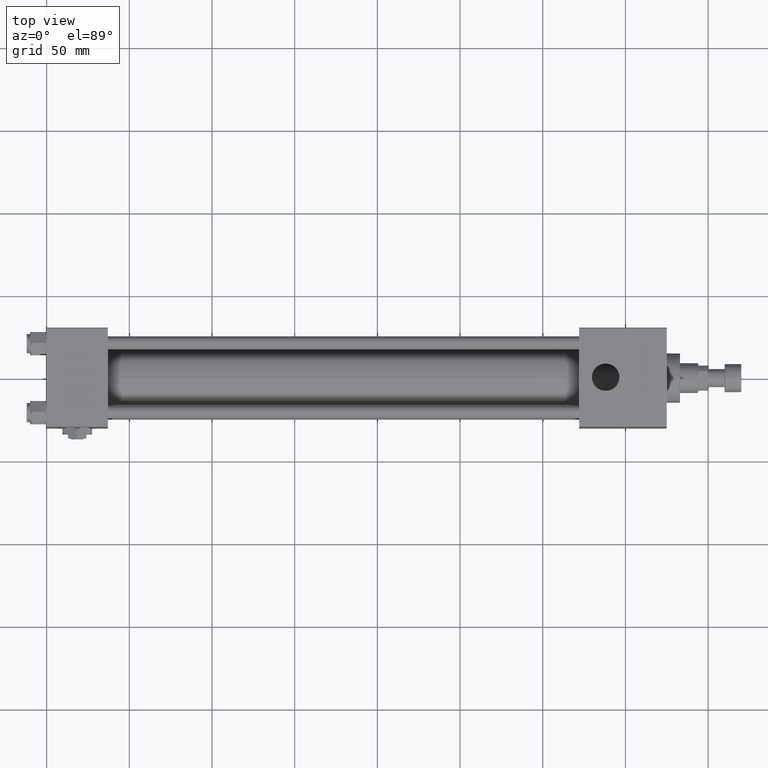
[diagram: clean part render]
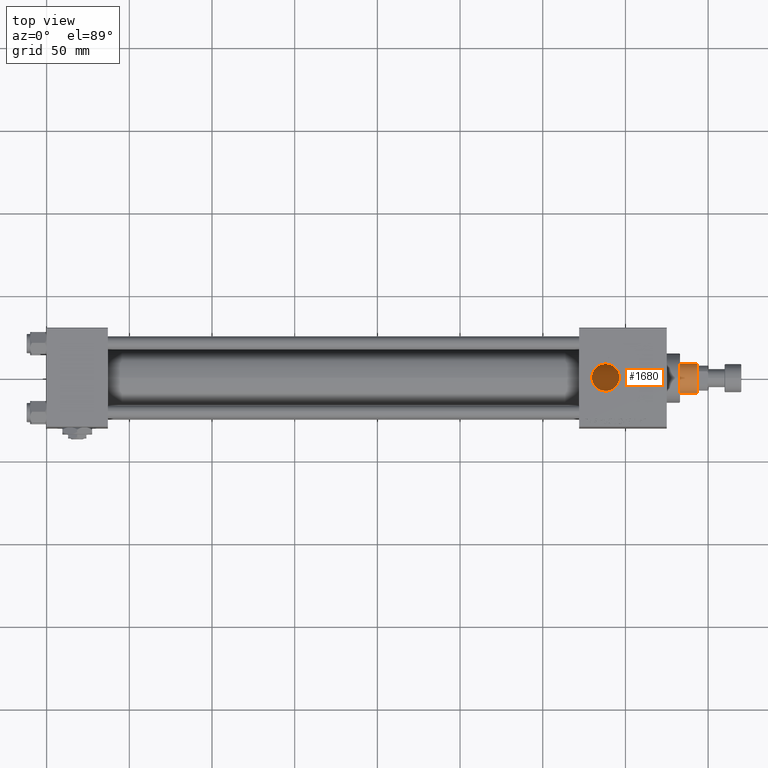
[diagram: same view with one face highlighted and labeled with its STEP entity id]
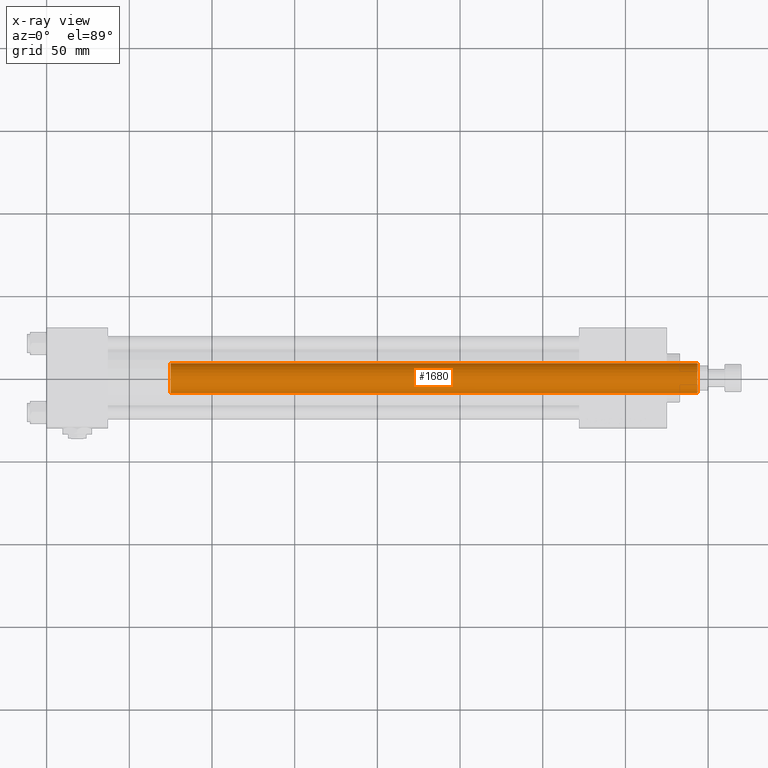
[diagram: x-ray of the same camera — body ghosted, the highlighted face saturated]
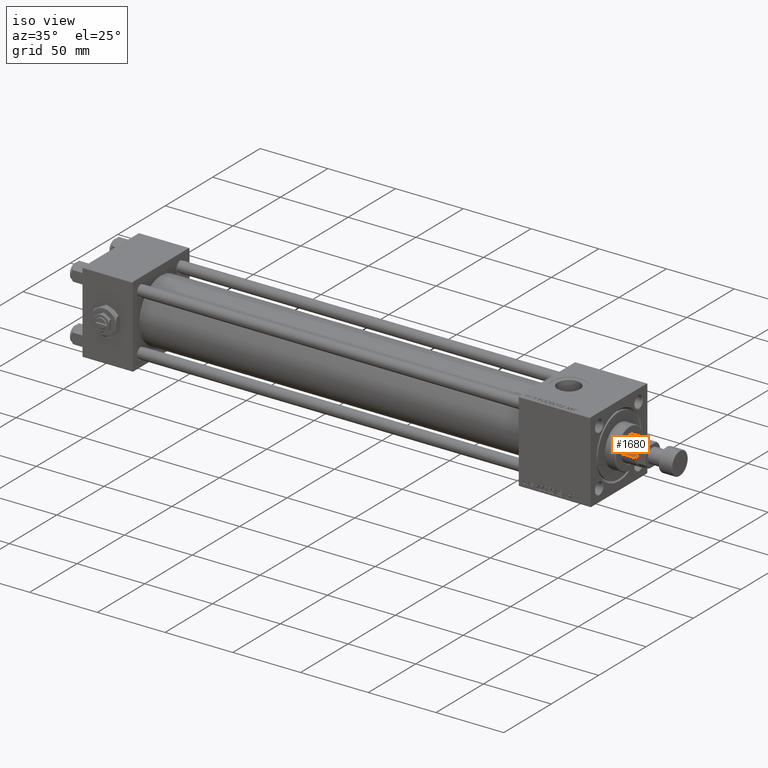
[diagram: same view with one face highlighted and labeled with its STEP entity id]
A machine part, top view. The second image highlights one B-rep face of the part: STEP entity #1680.
The next image is the same camera in x-ray: the body ghosted, the highlighted face saturated — about 0% of this face is hidden behind the body in this view.
A second angle (iso view) of the same face is appended — the face is thin or edge-on in the first view.
In plain terms, the highlighted cylindrical surface (edge-blend (fillet) strip) has radius 9 mm, axis along (-1, 0, 0).
Its self-contained STEP definition (entity closure, byte-faithful):
#150 = DIRECTION ( 'NONE',  ( -0.000000000000000000, -0.000000000000000000, -1.000000000000000000 ) ) ;
#1310 = DIRECTION ( 'NONE',  ( 1.000000000000000000, 0.000000000000000000, 0.000000000000000000 ) ) ;
#1561 = CARTESIAN_POINT ( 'NONE',  ( 0.000000000000000000, 0.000000000000000000, 38.00000000000000000 ) ) ;
#1680 = ADVANCED_FACE ( 'NONE', ( #36069 ), #16104, .T. ) ;
#2553 = EDGE_CURVE ( 'NONE', #14468, #42330, #45194, .T. ) ;
#4073 = CARTESIAN_POINT ( 'NONE',  ( -9.000000000000000000, 0.000000000000000000, 38.00000000000000000 ) ) ;
#4207 = CIRCLE ( 'NONE', #22891, 9.000000000000000000 ) ;
#5392 = AXIS2_PLACEMENT_3D ( 'NONE', #35949, #8245, #15721 ) ;
#7203 = ORIENTED_EDGE ( 'NONE', *, *, #2553, .F. ) ;
#7234 = EDGE_LOOP ( 'NONE', ( #7203, #37080, #44482, #48748 ) ) ;
#8245 = DIRECTION ( 'NONE',  ( 0.000000000000000000, 0.000000000000000000, -1.000000000000000000 ) ) ;
#10796 = DIRECTION ( 'NONE',  ( -0.000000000000000000, -0.000000000000000000, -1.000000000000000000 ) ) ;
#11142 = VECTOR ( 'NONE', #10796, 1000.000000000000000 ) ;
#11826 = DIRECTION ( 'NONE',  ( -1.000000000000000000, 0.000000000000000000, 0.000000000000000000 ) ) ;
#13254 = VECTOR ( 'NONE', #40691, 1000.000000000000000 ) ;
#13400 = VERTEX_POINT ( 'NONE', #4073 ) ;
#14468 = VERTEX_POINT ( 'NONE', #46194 ) ;
#15721 = DIRECTION ( 'NONE',  ( 1.000000000000000000, 0.000000000000000000, 0.000000000000000000 ) ) ;
#16104 = CYLINDRICAL_SURFACE ( 'NONE', #36706, 9.000000000000000000 ) ;
#18884 = CARTESIAN_POINT ( 'NONE',  ( 9.000000000000000000, 1.102182119232617714E-15, 38.00000000000000000 ) ) ;
#19921 = EDGE_CURVE ( 'NONE', #13400, #42330, #4207, .T. ) ;
#22891 = AXIS2_PLACEMENT_3D ( 'NONE', #1561, #34555, #1310 ) ;
#23902 = CARTESIAN_POINT ( 'NONE',  ( -9.000000000000000000, 0.000000000000000000, 357.0000000000000000 ) ) ;
#26614 = CIRCLE ( 'NONE', #5392, 9.000000000000000000 ) ;
#27789 = CARTESIAN_POINT ( 'NONE',  ( -9.000000000000000000, 0.000000000000000000, 356.5000000000000568 ) ) ;
#29313 = EDGE_CURVE ( 'NONE', #14468, #42991, #26614, .T. ) ;
#32077 = CARTESIAN_POINT ( 'NONE',  ( 0.000000000000000000, 0.000000000000000000, 357.0000000000000000 ) ) ;
#32173 = LINE ( 'NONE', #23902, #13254 ) ;
#34555 = DIRECTION ( 'NONE',  ( 0.000000000000000000, 0.000000000000000000, 1.000000000000000000 ) ) ;
#35949 = CARTESIAN_POINT ( 'NONE',  ( 0.000000000000000000, 0.000000000000000000, 356.5000000000000568 ) ) ;
#36069 = FACE_OUTER_BOUND ( 'NONE', #7234, .T. ) ;
#36706 = AXIS2_PLACEMENT_3D ( 'NONE', #32077, #150, #11826 ) ;
#37080 = ORIENTED_EDGE ( 'NONE', *, *, #29313, .T. ) ;
#39160 = EDGE_CURVE ( 'NONE', #42991, #13400, #32173, .T. ) ;
#40691 = DIRECTION ( 'NONE',  ( -0.000000000000000000, -0.000000000000000000, -1.000000000000000000 ) ) ;
#41208 = CARTESIAN_POINT ( 'NONE',  ( 9.000000000000000000, 1.102182119232617714E-15, 357.0000000000000000 ) ) ;
#42330 = VERTEX_POINT ( 'NONE', #18884 ) ;
#42991 = VERTEX_POINT ( 'NONE', #27789 ) ;
#44482 = ORIENTED_EDGE ( 'NONE', *, *, #39160, .T. ) ;
#45194 = LINE ( 'NONE', #41208, #11142 ) ;
#46194 = CARTESIAN_POINT ( 'NONE',  ( 9.000000000000000000, 1.102182119232617714E-15, 356.5000000000000568 ) ) ;
#48748 = ORIENTED_EDGE ( 'NONE', *, *, #19921, .T. ) ;